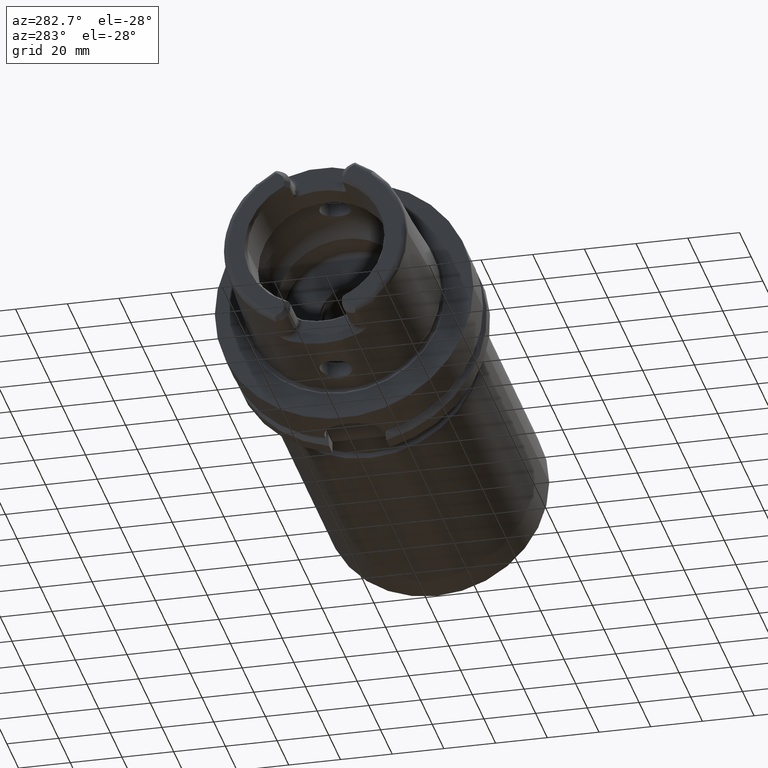
[diagram: clean part render]
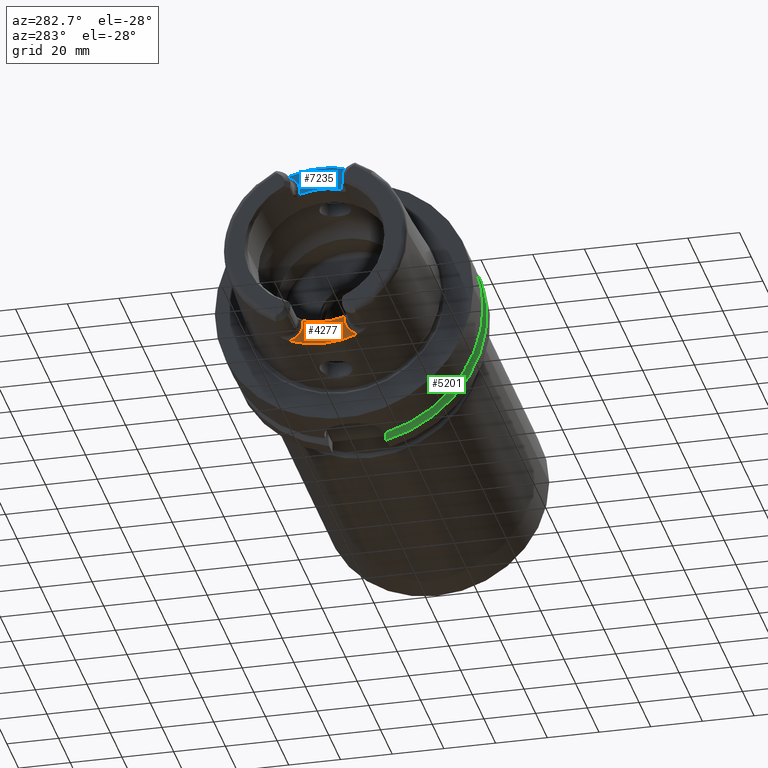
[diagram: same view with three faces highlighted in distinct colors, each labeled with its STEP entity id]
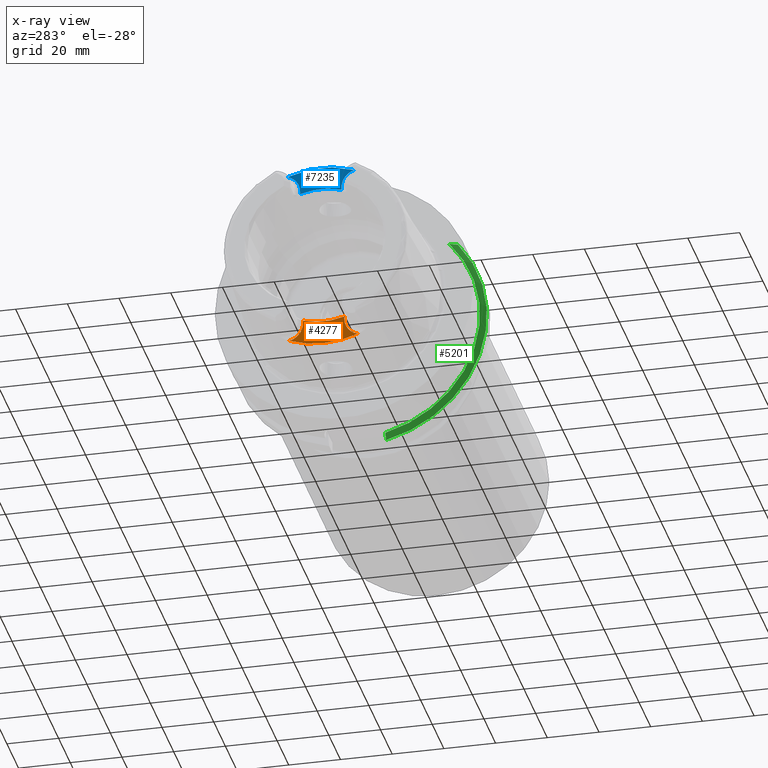
[diagram: x-ray of the same camera — body ghosted, the three highlighted faces saturated]
A machine part, auxiliary view with three faces highlighted in distinct colors.
The next image is the same camera in x-ray (body ghosted, the three faces saturated) — at least one of them is partly hidden behind the body in this view.
Their STEP definitions:

[orange] entity #4277 — the highlighted planar face has unit normal (-1, 0, 0).
#549=CARTESIAN_POINT('',(-3.5E1,0.E0,0.E0));
#550=DIRECTION('',(1.E0,0.E0,0.E0));
#551=DIRECTION('',(0.E0,-3.659355944317E-1,-9.306401779033E-1));
#552=AXIS2_PLACEMENT_3D('',#549,#550,#551);
#659=CARTESIAN_POINT('',(-3.5E1,1.326662904053E1,-3.373942900971E1));
#700=CARTESIAN_POINT('',(-3.5E1,-8.009999999994E0,-2.576044140549E1));
#701=CARTESIAN_POINT('',(-3.5E1,-7.269616392494E0,-2.599521452766E1));
#702=CARTESIAN_POINT('',(-3.5E1,-5.774680607735E0,-2.639793295020E1));
#703=CARTESIAN_POINT('',(-3.5E1,-3.481759859027E0,-2.680464578135E1));
#704=CARTESIAN_POINT('',(-3.5E1,-1.163574268408E0,-2.700848033442E1));
#705=CARTESIAN_POINT('',(-3.5E1,1.163574229636E0,-2.700848033529E1));
#706=CARTESIAN_POINT('',(-3.5E1,3.481759771636E0,-2.680464579107E1));
#707=CARTESIAN_POINT('',(-3.5E1,5.774680487919E0,-2.639793297771E1));
#708=CARTESIAN_POINT('',(-3.5E1,7.269616343063E0,-2.599521454333E1));
#709=CARTESIAN_POINT('',(-3.5E1,8.009999999993E0,-2.576044140549E1));
#711=DIRECTION('',(0.E0,-5.262912738182E-12,-1.E0));
#712=VECTOR('',#711,1.199558594507E0);
#713=CARTESIAN_POINT('',(-3.5E1,-8.009999999994E0,-2.576044140549E1));
#714=LINE('',#713,#712);
#715=CARTESIAN_POINT('',(-3.5E1,-1.501E1,-2.696E1));
#716=DIRECTION('',(-1.E0,0.E0,0.E0));
#717=DIRECTION('',(0.E0,1.E0,0.E0));
#718=AXIS2_PLACEMENT_3D('',#715,#716,#717);
#720=CARTESIAN_POINT('',(-3.5E1,1.501E1,-2.696E1));
#721=DIRECTION('',(-1.E0,0.E0,0.E0));
#722=DIRECTION('',(0.E0,-2.490529942106E-1,-9.684898585296E-1));
#723=AXIS2_PLACEMENT_3D('',#720,#721,#722);
#725=DIRECTION('',(0.E0,-6.865183864462E-12,1.E0));
#726=VECTOR('',#725,1.199558594503E0);
#727=CARTESIAN_POINT('',(-3.5E1,8.010000000001E0,-2.695999999999E1));
#728=LINE('',#727,#726);
#799=CARTESIAN_POINT('',(-3.5E1,-1.326662904053E1,-3.373942900971E1));
#3191=VERTEX_POINT('',#799);
#3192=VERTEX_POINT('',#659);
#3196=CARTESIAN_POINT('',(-3.5E1,-8.01E0,-2.696E1));
#3198=VERTEX_POINT('',#3196);
#3200=CARTESIAN_POINT('',(-3.5E1,8.01E0,-2.696E1));
#3202=VERTEX_POINT('',#3200);
#3208=VERTEX_POINT('',#700);
#3209=VERTEX_POINT('',#709);
#4262=CARTESIAN_POINT('',(-3.5E1,0.E0,0.E0));
#4263=DIRECTION('',(-1.E0,0.E0,0.E0));
#4264=DIRECTION('',(0.E0,0.E0,1.E0));
#4265=AXIS2_PLACEMENT_3D('',#4262,#4263,#4264);
#4266=PLANE('',#4265);
#4267=ORIENTED_EDGE('',*,*,#4253,.F.);
#4269=ORIENTED_EDGE('',*,*,#4268,.T.);
#4271=ORIENTED_EDGE('',*,*,#4270,.T.);
#4272=ORIENTED_EDGE('',*,*,#4101,.T.);
#4273=ORIENTED_EDGE('',*,*,#4159,.T.);
#4274=ORIENTED_EDGE('',*,*,#4171,.T.);
#4275=EDGE_LOOP('',(#4267,#4269,#4271,#4272,#4273,#4274));
#4276=FACE_OUTER_BOUND('',#4275,.F.);
#4277=ADVANCED_FACE('',(#4276),#4266,.T.);
#553=CIRCLE('',#552,3.6254E1);
#710=B_SPLINE_CURVE_WITH_KNOTS('',3,(#700,#701,#702,#703,#704,#705,#706,#707,
#708,#709),.UNSPECIFIED.,.F.,.F.,(4,1,1,1,1,1,1,4),(0.E0,1.428571428571E-1,
2.857142857143E-1,4.285714285714E-1,5.714285714286E-1,7.142857142857E-1,
8.571428571429E-1,1.E0),.UNSPECIFIED.);
#719=CIRCLE('',#718,7.E0);
#724=CIRCLE('',#723,7.E0);
#4101=EDGE_CURVE('',#3191,#3192,#553,.T.);
#4159=EDGE_CURVE('',#3192,#3202,#724,.T.);
#4171=EDGE_CURVE('',#3202,#3209,#728,.T.);
#4253=EDGE_CURVE('',#3208,#3209,#710,.T.);
#4268=EDGE_CURVE('',#3208,#3198,#714,.T.);
#4270=EDGE_CURVE('',#3198,#3191,#719,.T.);

[blue] entity #7235 — the highlighted planar face has unit normal (-1, 0, 0).
#9=CARTESIAN_POINT('',(-4.E1,0.E0,0.E0));
#10=DIRECTION('',(1.E0,0.E0,0.E0));
#11=DIRECTION('',(0.E0,3.574556786365E-1,9.339301032789E-1));
#12=AXIS2_PLACEMENT_3D('',#9,#10,#11);
#2894=DIRECTION('',(0.E0,5.174062213620E-12,1.E0));
#2895=VECTOR('',#2894,1.199558594508E0);
#2896=CARTESIAN_POINT('',(-4.E1,8.009999999994E0,2.576044140549E1));
#2897=LINE('',#2896,#2895);
#2898=CARTESIAN_POINT('',(-4.E1,1.501E1,2.696E1));
#2899=DIRECTION('',(-1.E0,0.E0,0.E0));
#2900=DIRECTION('',(0.E0,-1.E0,0.E0));
#2901=AXIS2_PLACEMENT_3D('',#2898,#2899,#2900);
#2903=CARTESIAN_POINT('',(-4.E1,-1.501E1,2.696E1));
#2904=DIRECTION('',(-1.E0,0.E0,0.E0));
#2905=DIRECTION('',(0.E0,3.057634963159E-1,9.521074962002E-1));
#2906=AXIS2_PLACEMENT_3D('',#2903,#2904,#2905);
#2908=DIRECTION('',(0.E0,6.866664706538E-12,-1.E0));
#2909=VECTOR('',#2908,1.199558594503E0);
#2910=CARTESIAN_POINT('',(-4.E1,-8.010000000001E0,2.695999999999E1));
#2911=LINE('',#2910,#2909);
#2912=CARTESIAN_POINT('',(-4.E1,8.009999999994E0,2.576044140549E1));
#2913=CARTESIAN_POINT('',(-4.E1,7.269616392493E0,2.599521452766E1));
#2914=CARTESIAN_POINT('',(-4.E1,5.774680607733E0,2.639793295020E1));
#2915=CARTESIAN_POINT('',(-4.E1,3.481759859025E0,2.680464578135E1));
#2916=CARTESIAN_POINT('',(-4.E1,1.163574268407E0,2.700848033442E1));
#2917=CARTESIAN_POINT('',(-4.E1,-1.163574229637E0,2.700848033529E1));
#2918=CARTESIAN_POINT('',(-4.E1,-3.481759771637E0,2.680464579107E1));
#2919=CARTESIAN_POINT('',(-4.E1,-5.774680487919E0,2.639793297771E1));
#2920=CARTESIAN_POINT('',(-4.E1,-7.269616343063E0,2.599521454333E1));
#2921=CARTESIAN_POINT('',(-4.E1,-8.009999999993E0,2.576044140549E1));
#3107=CARTESIAN_POINT('',(-4.E1,8.01E0,2.696E1));
#3109=VERTEX_POINT('',#3107);
#3111=CARTESIAN_POINT('',(-4.E1,-8.01E0,2.696E1));
#3113=VERTEX_POINT('',#3111);
#3115=CARTESIAN_POINT('',(-4.E1,1.286965552579E1,3.362475247340E1));
#3116=VERTEX_POINT('',#3115);
#3121=CARTESIAN_POINT('',(-4.E1,-1.286965552579E1,3.362475247340E1));
#3122=VERTEX_POINT('',#3121);
#3163=CARTESIAN_POINT('',(-4.E1,8.009999999994E0,2.576044140549E1));
#3164=VERTEX_POINT('',#3163);
#3165=CARTESIAN_POINT('',(-4.E1,-8.009999999993E0,2.576044140549E1));
#3166=VERTEX_POINT('',#3165);
#7220=CARTESIAN_POINT('',(-4.E1,0.E0,0.E0));
#7221=DIRECTION('',(-1.E0,0.E0,0.E0));
#7222=DIRECTION('',(0.E0,0.E0,1.E0));
#7223=AXIS2_PLACEMENT_3D('',#7220,#7221,#7222);
#7224=PLANE('',#7223);
#7225=ORIENTED_EDGE('',*,*,#3823,.T.);
#7226=ORIENTED_EDGE('',*,*,#3841,.T.);
#7227=ORIENTED_EDGE('',*,*,#3608,.T.);
#7229=ORIENTED_EDGE('',*,*,#7228,.T.);
#7231=ORIENTED_EDGE('',*,*,#7230,.T.);
#7232=ORIENTED_EDGE('',*,*,#7211,.F.);
#7233=EDGE_LOOP('',(#7225,#7226,#7227,#7229,#7231,#7232));
#7234=FACE_OUTER_BOUND('',#7233,.F.);
#7235=ADVANCED_FACE('',(#7234),#7224,.T.);
#13=CIRCLE('',#12,3.60035E1);
#2902=CIRCLE('',#2901,7.E0);
#2907=CIRCLE('',#2906,7.E0);
#2922=B_SPLINE_CURVE_WITH_KNOTS('',3,(#2912,#2913,#2914,#2915,#2916,#2917,#2918,
#2919,#2920,#2921),.UNSPECIFIED.,.F.,.F.,(4,1,1,1,1,1,1,4),(0.E0,
1.428571428571E-1,2.857142857143E-1,4.285714285714E-1,5.714285714286E-1,
7.142857142857E-1,8.571428571429E-1,1.E0),.UNSPECIFIED.);
#3608=EDGE_CURVE('',#3116,#3122,#13,.T.);
#3823=EDGE_CURVE('',#3164,#3109,#2897,.T.);
#3841=EDGE_CURVE('',#3109,#3116,#2902,.T.);
#7211=EDGE_CURVE('',#3164,#3166,#2922,.T.);
#7228=EDGE_CURVE('',#3122,#3113,#2907,.T.);
#7230=EDGE_CURVE('',#3113,#3166,#2911,.T.);

[green] entity #5201 — the highlighted conical surface has half-angle 60 deg.
#1670=CARTESIAN_POINT('',(2.1875E1,-3.571640491003E1,3.15E1));
#1671=CARTESIAN_POINT('',(2.201925574841E1,-3.604955434192E1,3.15E1));
#1672=CARTESIAN_POINT('',(2.231322476087E1,-3.672437326077E1,3.15E1));
#1673=CARTESIAN_POINT('',(2.277010201186E1,-3.776083400964E1,3.15E1));
#1674=CARTESIAN_POINT('',(2.308650936123E1,-3.847048452534E1,3.15E1));
#1675=CARTESIAN_POINT('',(2.324759526419E1,-3.882975663071E1,3.15E1));
#1677=CARTESIAN_POINT('',(2.324759526419E1,0.E0,0.E0));
#1678=DIRECTION('',(1.E0,0.E0,0.E0));
#1679=DIRECTION('',(0.E0,-7.765951326142E-1,6.3E-1));
#1680=AXIS2_PLACEMENT_3D('',#1677,#1678,#1679);
#1682=CARTESIAN_POINT('',(2.1875E1,-1.1E1,-4.633477721644E1));
#1683=CARTESIAN_POINT('',(2.202318700409E1,-1.1E1,-4.659857839127E1));
#1684=CARTESIAN_POINT('',(2.232244181881E1,-1.1E1,-4.713106867413E1));
#1685=CARTESIAN_POINT('',(2.277988963764E1,-1.1E1,-4.794432689775E1));
#1686=CARTESIAN_POINT('',(2.309072380685E1,-1.1E1,-4.849646015371E1));
#1687=CARTESIAN_POINT('',(2.324759526419E1,-1.1E1,-4.877499359303E1));
#1689=CARTESIAN_POINT('',(2.1875E1,0.E0,0.E0));
#1690=DIRECTION('',(-1.E0,0.E0,0.E0));
#1691=DIRECTION('',(0.E0,-2.309827916554E-1,-9.729578356533E-1));
#1692=AXIS2_PLACEMENT_3D('',#1689,#1690,#1691);
#3352=CARTESIAN_POINT('',(2.324759526419E1,-1.1E1,-4.877499359303E1));
#3354=VERTEX_POINT('',#3352);
#3374=CARTESIAN_POINT('',(2.1875E1,-1.1E1,-4.633477721644E1));
#3375=VERTEX_POINT('',#3374);
#3402=CARTESIAN_POINT('',(2.324759526419E1,-3.882975663071E1,3.15E1));
#3404=VERTEX_POINT('',#3402);
#3426=CARTESIAN_POINT('',(2.1875E1,-3.571640491003E1,3.15E1));
#3427=VERTEX_POINT('',#3426);
#5190=CARTESIAN_POINT('',(2.256129763210E1,0.E0,0.E0));
#5191=DIRECTION('',(1.E0,0.E0,0.E0));
#5192=DIRECTION('',(0.E0,-1.E0,0.E0));
#5193=AXIS2_PLACEMENT_3D('',#5190,#5191,#5192);
#5194=CONICAL_SURFACE('',#5193,4.881129763210E1,6.E1);
#5195=ORIENTED_EDGE('',*,*,#4710,.T.);
#5196=ORIENTED_EDGE('',*,*,#4753,.T.);
#5197=ORIENTED_EDGE('',*,*,#4904,.F.);
#5198=ORIENTED_EDGE('',*,*,#5155,.T.);
#5199=EDGE_LOOP('',(#5195,#5196,#5197,#5198));
#5200=FACE_OUTER_BOUND('',#5199,.F.);
#5201=ADVANCED_FACE('',(#5200),#5194,.T.);
#1676=B_SPLINE_CURVE_WITH_KNOTS('',3,(#1670,#1671,#1672,#1673,#1674,#1675),
.UNSPECIFIED.,.F.,.F.,(4,1,1,4),(0.E0,3.333333333333E-1,6.666666666667E-1,1.E0),
.UNSPECIFIED.);
#1681=CIRCLE('',#1680,5.E1);
#1688=B_SPLINE_CURVE_WITH_KNOTS('',3,(#1682,#1683,#1684,#1685,#1686,#1687),
.UNSPECIFIED.,.F.,.F.,(4,1,1,4),(0.E0,3.333333333333E-1,6.666666666667E-1,1.E0),
.UNSPECIFIED.);
#1693=CIRCLE('',#1692,4.762259526419E1);
#4710=EDGE_CURVE('',#3427,#3404,#1676,.T.);
#4753=EDGE_CURVE('',#3404,#3354,#1681,.T.);
#4904=EDGE_CURVE('',#3375,#3354,#1688,.T.);
#5155=EDGE_CURVE('',#3375,#3427,#1693,.T.);